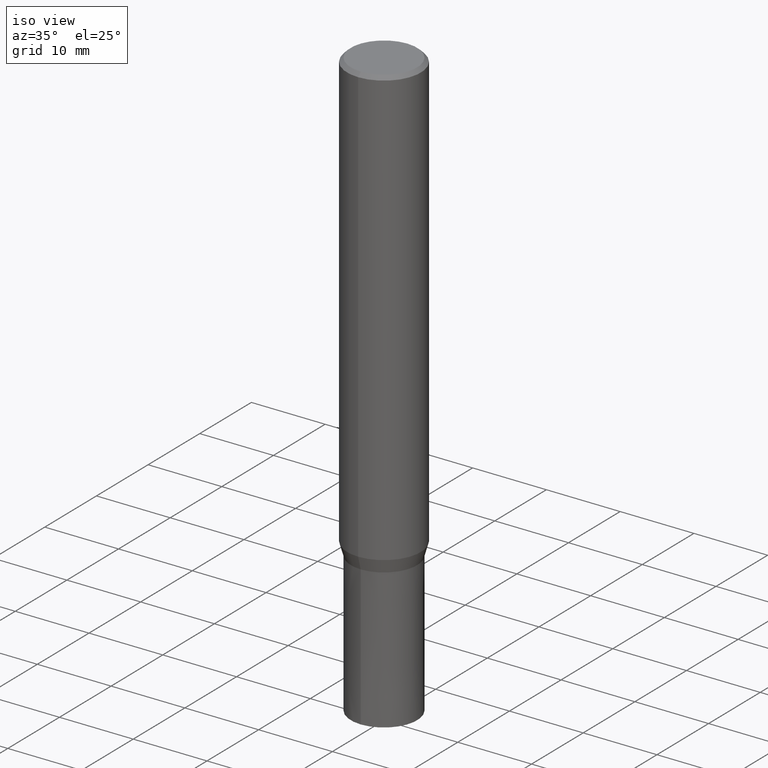
[diagram: clean part render]
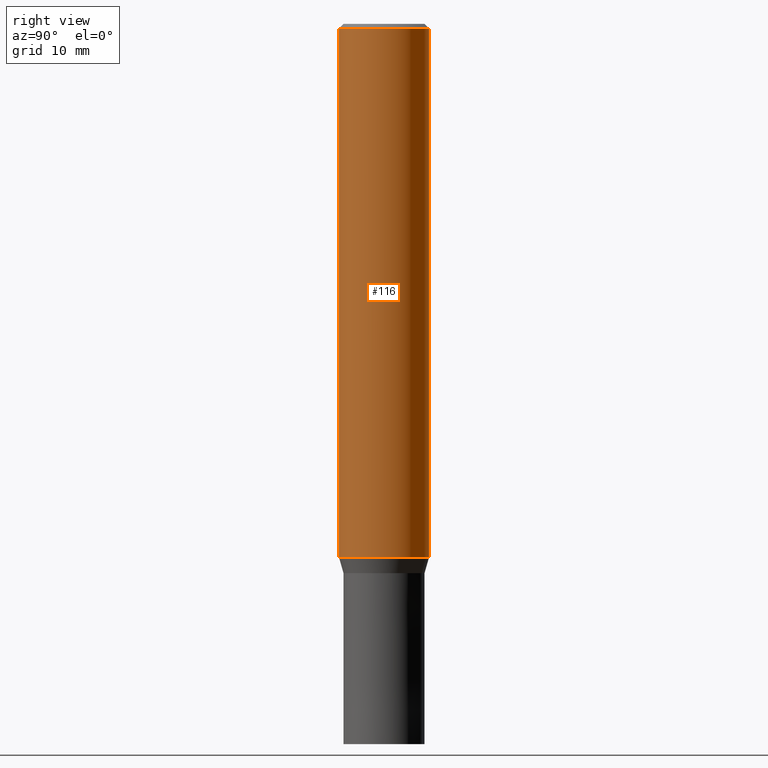
[diagram: tour spotlight — one face highlighted and labeled with its STEP entity id]
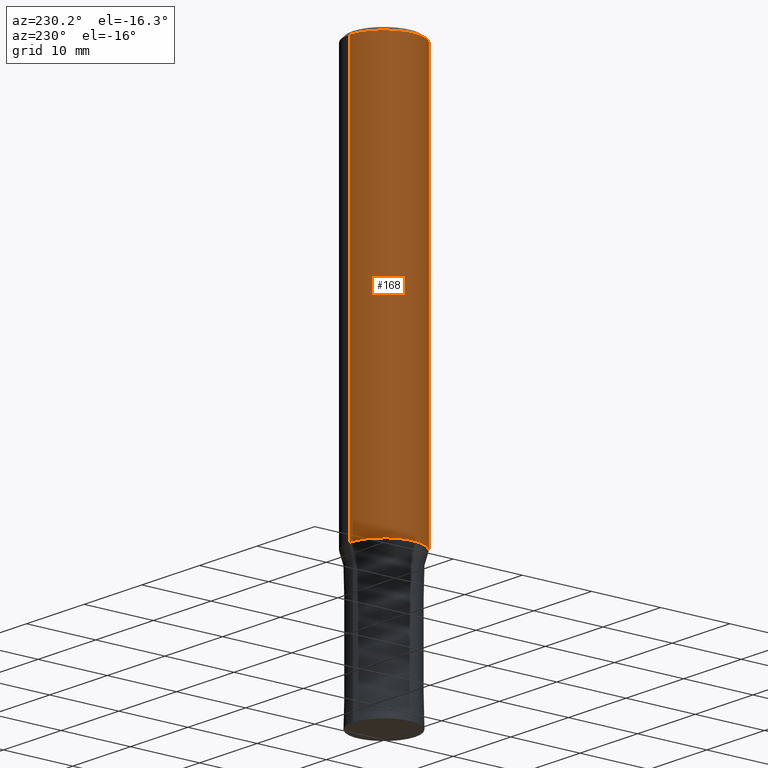
[diagram: tour spotlight — one face highlighted and labeled with its STEP entity id]
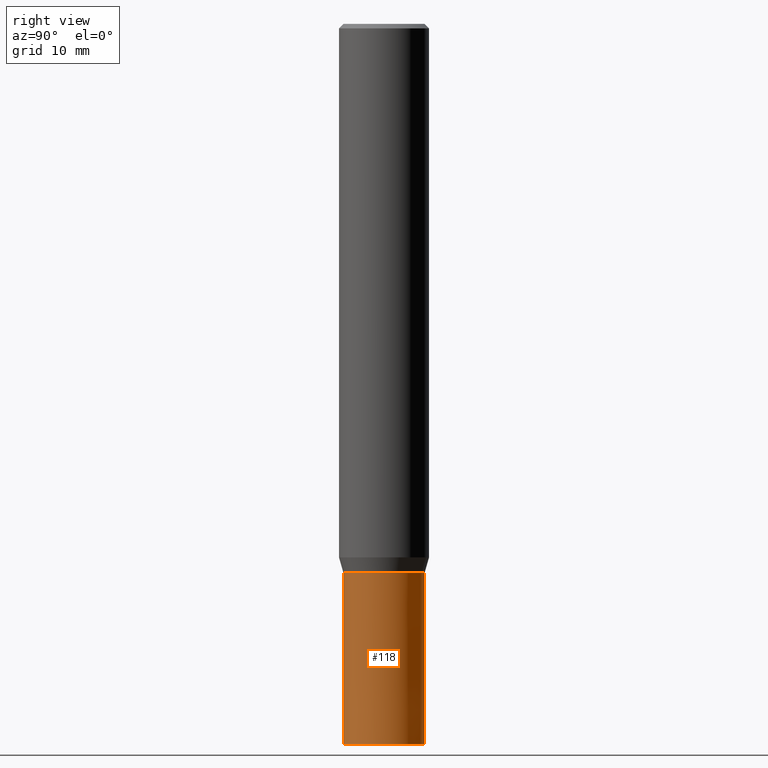
[diagram: tour spotlight — one face highlighted and labeled with its STEP entity id]
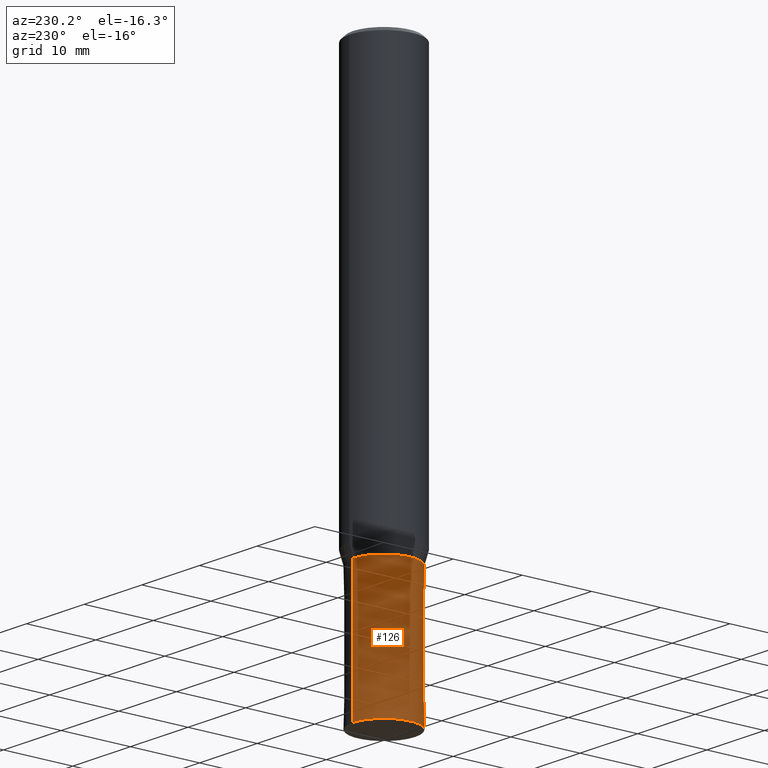
[diagram: tour spotlight — one face highlighted and labeled with its STEP entity id]
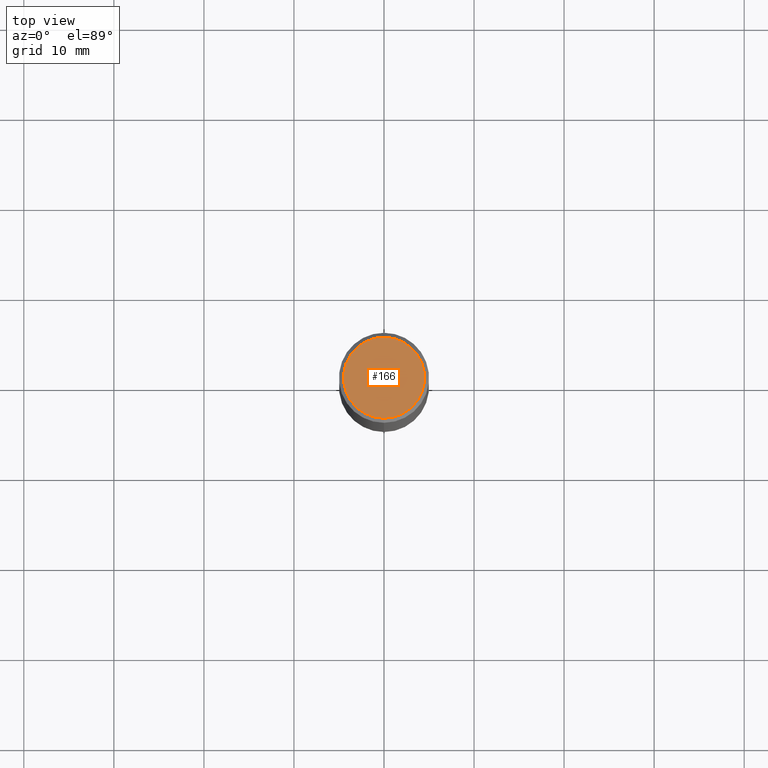
[diagram: tour spotlight — one face highlighted and labeled with its STEP entity id]
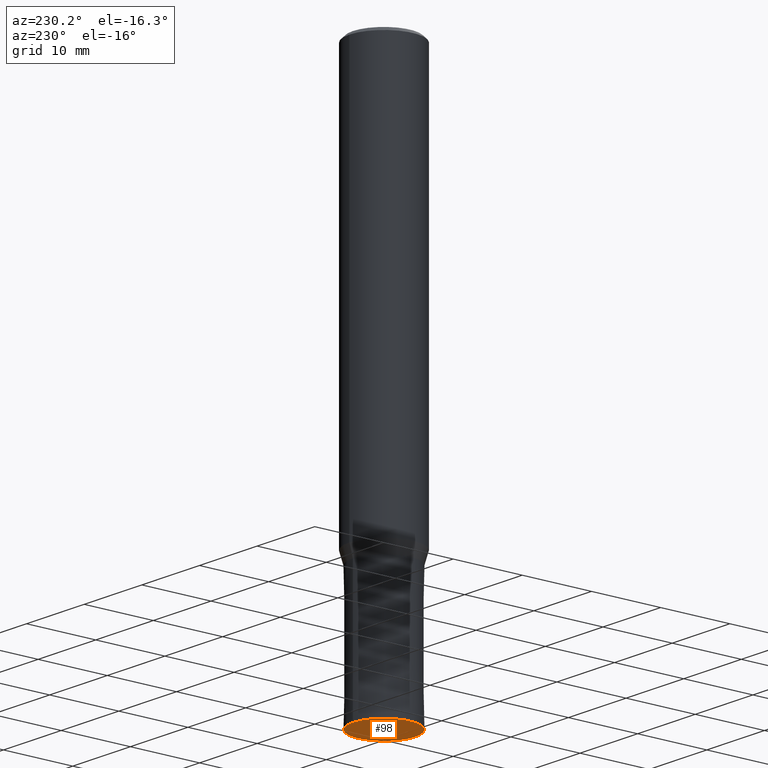
[diagram: tour spotlight — one face highlighted and labeled with its STEP entity id]
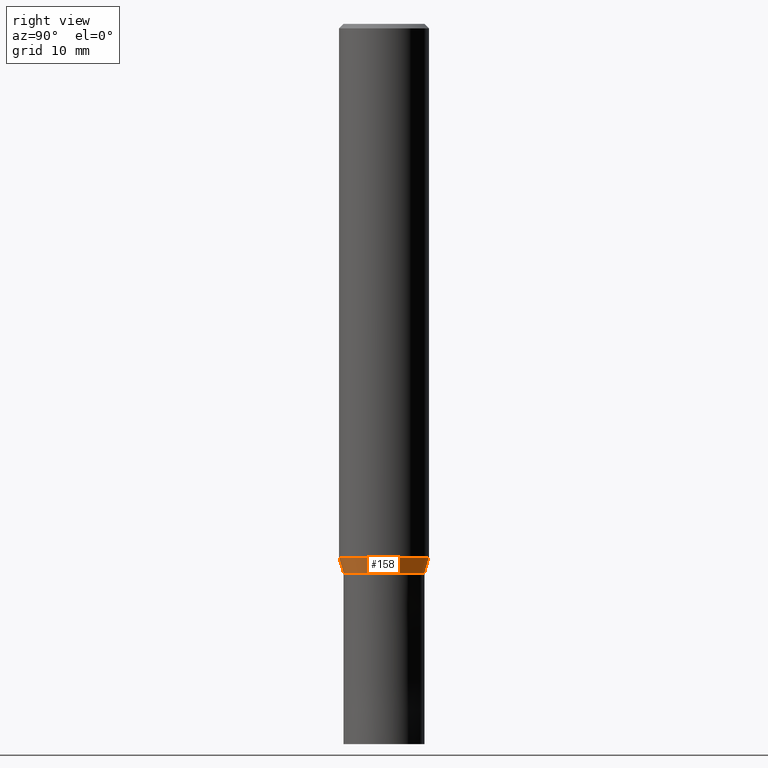
[diagram: tour spotlight — one face highlighted and labeled with its STEP entity id]
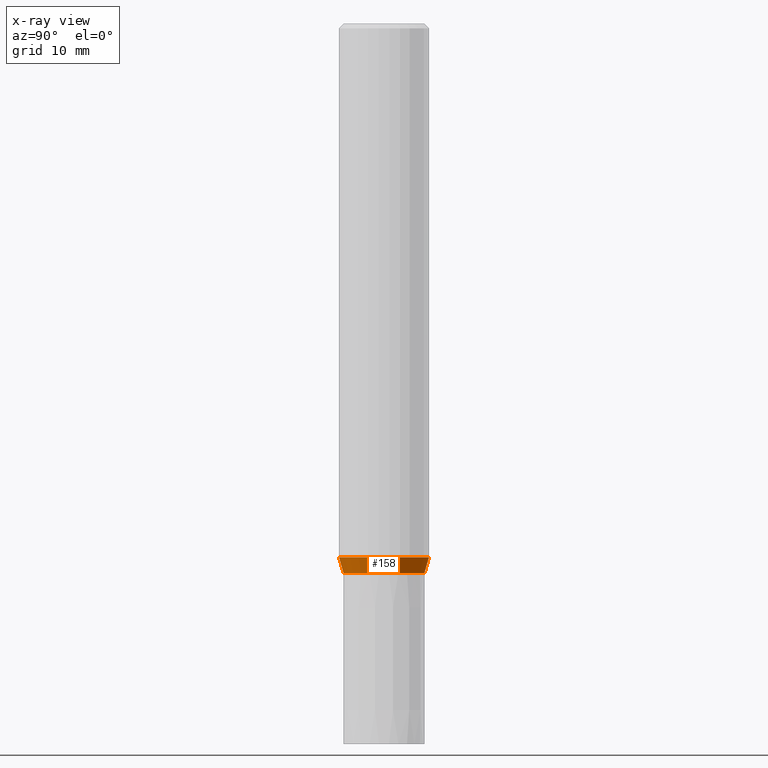
[diagram: x-ray of the same camera — body ghosted, this tour face saturated]
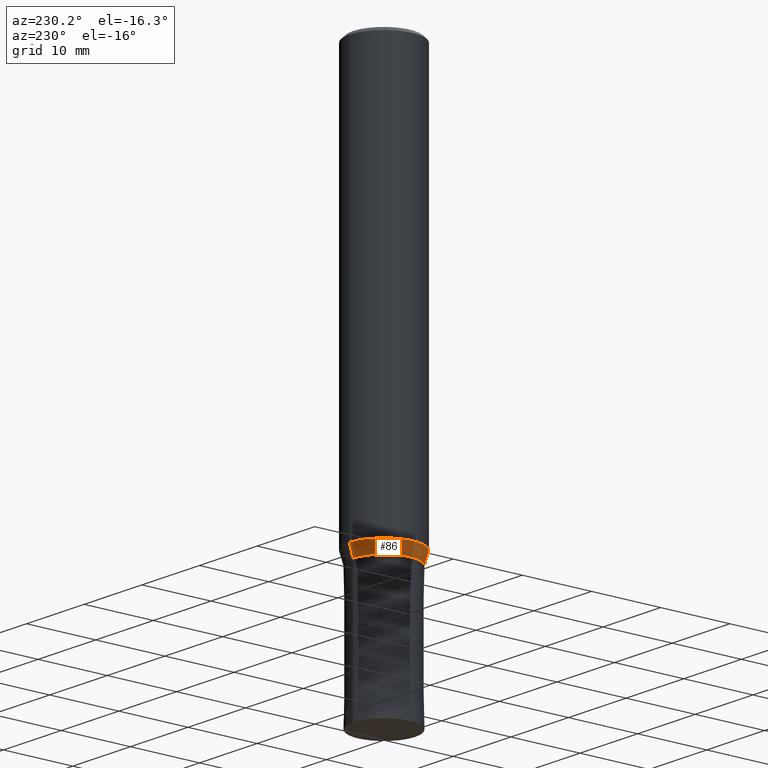
[diagram: tour spotlight — one face highlighted and labeled with its STEP entity id]
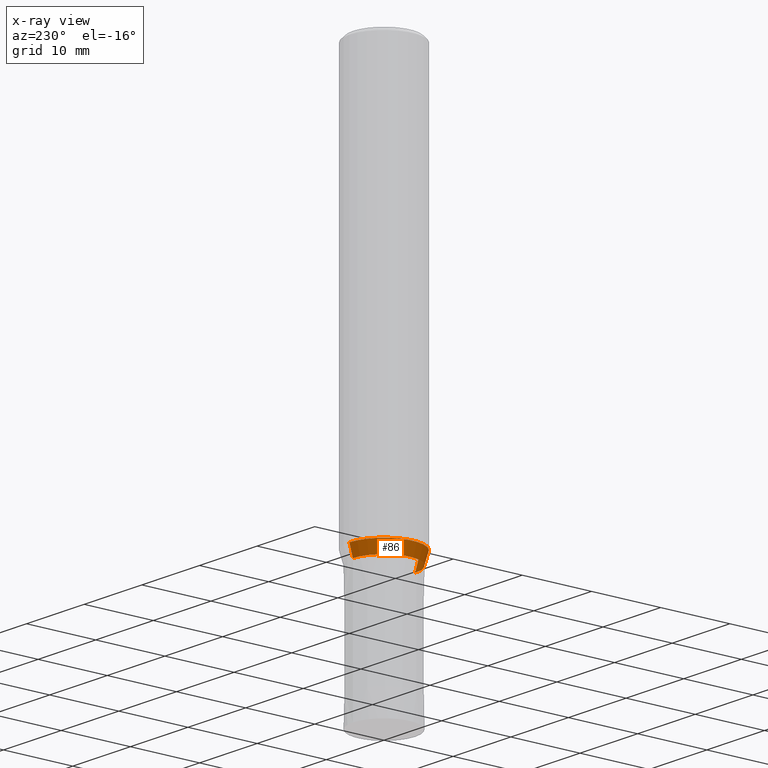
[diagram: x-ray of the same camera — body ghosted, this tour face saturated]
A machine part: a face-by-face anatomy tour. The part has 13 B-rep faces; the first image is the clean iso view, then the 8 largest visible faces are spotlighted one at a time (largest first), each with its STEP entity span.

Face 1 — right view, entity #116. In plain terms, the highlighted cylindrical surface (partial cylindrical patch) has radius 5 mm, axis along (-0, -0, 1).
Definition (entity closure, byte-faithful):
#92=EDGE_CURVE('',#106,#160,#214,.T.);
#106=VERTEX_POINT('',#229);
#108=VERTEX_POINT('',#231);
#116=ADVANCED_FACE('',(#241),#242,.T.);
#122=EDGE_CURVE('',#160,#138,#249,.T.);
#128=EDGE_CURVE('',#138,#108,#257,.T.);
#138=VERTEX_POINT('',#267);
#160=VERTEX_POINT('',#291);
#164=EDGE_CURVE('',#106,#108,#295,.T.);
#214=LINE('',#344,#345);
#229=CARTESIAN_POINT('',(0.0,5.0,-0.5));
#231=CARTESIAN_POINT('',(6.12303176911189E-016,-5.0,-0.5));
#241=FACE_OUTER_BOUND('',#377,.T.);
#242=CYLINDRICAL_SURFACE('',#378,5.0);
#249=CIRCLE('',#386,5.0);
#257=LINE('',#395,#396);
#267=CARTESIAN_POINT('',(6.12303176911189E-016,-5.0,-59.256));
#291=CARTESIAN_POINT('',(0.0,5.0,-59.256));
#295=CIRCLE('',#447,5.0);
#344=CARTESIAN_POINT('',(-6.12303176911189E-016,5.0,-29.878));
#345=VECTOR('',#485,1.0);
#377=EDGE_LOOP('',(#515,#516,#517,#518));
#378=AXIS2_PLACEMENT_3D('',#519,#520,#521);
#386=AXIS2_PLACEMENT_3D('',#530,#531,#532);
#395=CARTESIAN_POINT('',(6.12303176911189E-016,-5.0,-29.878));
#396=VECTOR('',#547,1.0);
#447=AXIS2_PLACEMENT_3D('',#585,#586,#587);
#485=DIRECTION('',(0.0,0.0,-1.0));
#515=ORIENTED_EDGE('',*,*,#92,.F.);
#516=ORIENTED_EDGE('',*,*,#164,.T.);
#517=ORIENTED_EDGE('',*,*,#128,.F.);
#518=ORIENTED_EDGE('',*,*,#122,.F.);
#519=CARTESIAN_POINT('',(0.0,0.0,-29.878));
#520=DIRECTION('',(-0.0,-0.0,1.0));
#521=DIRECTION('',(0.0,1.0,0.0));
#530=CARTESIAN_POINT('',(0.0,0.0,-59.256));
#531=DIRECTION('',(0.0,0.0,-1.0));
#532=DIRECTION('',(0.0,1.0,0.0));
#547=DIRECTION('',(-0.0,-0.0,1.0));
#585=CARTESIAN_POINT('',(0.0,0.0,-0.5));
#586=DIRECTION('',(0.0,0.0,-1.0));
#587=DIRECTION('',(0.0,1.0,0.0));

Face 2 — auxiliary view, entity #168. In plain terms, the highlighted cylindrical surface (partial cylindrical patch) has radius 5 mm, axis along (-0, -0, 1).
Definition (entity closure, byte-faithful):
#92=EDGE_CURVE('',#106,#160,#214,.T.);
#106=VERTEX_POINT('',#229);
#108=VERTEX_POINT('',#231);
#128=EDGE_CURVE('',#138,#108,#257,.T.);
#138=VERTEX_POINT('',#267);
#146=EDGE_CURVE('',#108,#106,#276,.T.);
#156=EDGE_CURVE('',#138,#160,#286,.T.);
#160=VERTEX_POINT('',#291);
#168=ADVANCED_FACE('',(#300),#301,.T.);
#214=LINE('',#344,#345);
#229=CARTESIAN_POINT('',(0.0,5.0,-0.5));
#231=CARTESIAN_POINT('',(6.12303176911189E-016,-5.0,-0.5));
#257=LINE('',#395,#396);
#267=CARTESIAN_POINT('',(6.12303176911189E-016,-5.0,-59.256));
#276=CIRCLE('',#420,5.0);
#286=CIRCLE('',#435,5.0);
#291=CARTESIAN_POINT('',(0.0,5.0,-59.256));
#300=FACE_OUTER_BOUND('',#452,.T.);
#301=CYLINDRICAL_SURFACE('',#453,5.0);
#344=CARTESIAN_POINT('',(-6.12303176911189E-016,5.0,-29.878));
#345=VECTOR('',#485,1.0);
#395=CARTESIAN_POINT('',(6.12303176911189E-016,-5.0,-29.878));
#396=VECTOR('',#547,1.0);
#420=AXIS2_PLACEMENT_3D('',#563,#564,#565);
#435=AXIS2_PLACEMENT_3D('',#573,#574,#575);
#452=EDGE_LOOP('',(#595,#596,#597,#598));
#453=AXIS2_PLACEMENT_3D('',#599,#600,#601);
#485=DIRECTION('',(0.0,0.0,-1.0));
#547=DIRECTION('',(-0.0,-0.0,1.0));
#563=CARTESIAN_POINT('',(0.0,0.0,-0.5));
#564=DIRECTION('',(0.0,0.0,-1.0));
#565=DIRECTION('',(0.0,1.0,0.0));
#573=CARTESIAN_POINT('',(0.0,0.0,-59.256));
#574=DIRECTION('',(0.0,0.0,-1.0));
#575=DIRECTION('',(0.0,1.0,0.0));
#595=ORIENTED_EDGE('',*,*,#92,.T.);
#596=ORIENTED_EDGE('',*,*,#156,.F.);
#597=ORIENTED_EDGE('',*,*,#128,.T.);
#598=ORIENTED_EDGE('',*,*,#146,.T.);
#599=CARTESIAN_POINT('',(0.0,0.0,-29.878));
#600=DIRECTION('',(-0.0,-0.0,1.0));
#601=DIRECTION('',(0.0,1.0,0.0));

Face 3 — right view, entity #118. In plain terms, the highlighted conical surface has half-angle 0 deg.
Definition (entity closure, byte-faithful):
#84=VERTEX_POINT('',#205);
#102=VERTEX_POINT('',#225);
#104=EDGE_CURVE('',#144,#84,#227,.T.);
#118=ADVANCED_FACE('',(#244),#245,.T.);
#130=VERTEX_POINT('',#259);
#132=EDGE_CURVE('',#130,#144,#261,.T.);
#144=VERTEX_POINT('',#274);
#162=EDGE_CURVE('',#84,#102,#293,.T.);
#184=EDGE_CURVE('',#130,#102,#319,.T.);
#205=CARTESIAN_POINT('',(5.5107285922007E-016,-4.5,-80.0));
#225=CARTESIAN_POINT('',(5.51060613156532E-016,-4.4999,-61.0));
#227=CIRCLE('',#363,4.5);
#244=FACE_OUTER_BOUND('',#380,.T.);
#245=CONICAL_SURFACE('',#381,4.49995,5.26315789467598E-006);
#259=CARTESIAN_POINT('',(0.0,4.4999,-61.0));
#261=LINE('',#401,#402);
#274=CARTESIAN_POINT('',(0.0,4.5,-80.0));
#293=LINE('',#443,#444);
#319=CIRCLE('',#474,4.4999);
#363=AXIS2_PLACEMENT_3D('',#499,#500,#501);
#380=EDGE_LOOP('',(#523,#524,#525,#526));
#381=AXIS2_PLACEMENT_3D('',#527,#528,#529);
#401=CARTESIAN_POINT('',(-5.51066736188301E-016,4.49995,-70.5));
#402=VECTOR('',#548,1.0);
#443=CARTESIAN_POINT('',(5.51066736188301E-016,-4.49995,-70.5));
#444=VECTOR('',#584,1.0);
#474=AXIS2_PLACEMENT_3D('',#621,#622,#623);
#499=CARTESIAN_POINT('',(0.0,0.0,-80.0));
#500=DIRECTION('',(0.0,0.0,-1.0));
#501=DIRECTION('',(0.0,1.0,0.0));
#523=ORIENTED_EDGE('',*,*,#132,.F.);
#524=ORIENTED_EDGE('',*,*,#184,.T.);
#525=ORIENTED_EDGE('',*,*,#162,.F.);
#526=ORIENTED_EDGE('',*,*,#104,.F.);
#527=CARTESIAN_POINT('',(0.0,0.0,-70.5));
#528=DIRECTION('',(0.0,-0.0,-1.0));
#529=DIRECTION('',(0.0,1.0,0.0));
#548=DIRECTION('',(-6.44529659896085E-022,5.26315789465168E-006,-0.99999999998615));
#584=DIRECTION('',(-6.44529659896085E-022,5.26315789465168E-006,0.99999999998615));
#621=CARTESIAN_POINT('',(0.0,0.0,-61.0));
#622=DIRECTION('',(0.0,0.0,-1.0));
#623=DIRECTION('',(0.0,1.0,0.0));

Face 4 — auxiliary view, entity #126. In plain terms, the highlighted conical surface has half-angle 0 deg.
Definition (entity closure, byte-faithful):
#84=VERTEX_POINT('',#205);
#102=VERTEX_POINT('',#225);
#126=ADVANCED_FACE('',(#254),#255,.T.);
#130=VERTEX_POINT('',#259);
#132=EDGE_CURVE('',#130,#144,#261,.T.);
#134=EDGE_CURVE('',#102,#130,#263,.T.);
#136=EDGE_CURVE('',#84,#144,#265,.T.);
#144=VERTEX_POINT('',#274);
#162=EDGE_CURVE('',#84,#102,#293,.T.);
#205=CARTESIAN_POINT('',(5.5107285922007E-016,-4.5,-80.0));
#225=CARTESIAN_POINT('',(5.51060613156532E-016,-4.4999,-61.0));
#254=FACE_OUTER_BOUND('',#391,.T.);
#255=CONICAL_SURFACE('',#392,4.49995,5.26315789467598E-006);
#259=CARTESIAN_POINT('',(0.0,4.4999,-61.0));
#261=LINE('',#401,#402);
#263=CIRCLE('',#405,4.4999);
#265=CIRCLE('',#408,4.5);
#274=CARTESIAN_POINT('',(0.0,4.5,-80.0));
#293=LINE('',#443,#444);
#391=EDGE_LOOP('',(#540,#541,#542,#543));
#392=AXIS2_PLACEMENT_3D('',#544,#545,#546);
#401=CARTESIAN_POINT('',(-5.51066736188301E-016,4.49995,-70.5));
#402=VECTOR('',#548,1.0);
#405=AXIS2_PLACEMENT_3D('',#549,#550,#551);
#408=AXIS2_PLACEMENT_3D('',#552,#553,#554);
#443=CARTESIAN_POINT('',(5.51066736188301E-016,-4.49995,-70.5));
#444=VECTOR('',#584,1.0);
#540=ORIENTED_EDGE('',*,*,#132,.T.);
#541=ORIENTED_EDGE('',*,*,#136,.F.);
#542=ORIENTED_EDGE('',*,*,#162,.T.);
#543=ORIENTED_EDGE('',*,*,#134,.T.);
#544=CARTESIAN_POINT('',(0.0,0.0,-70.5));
#545=DIRECTION('',(0.0,-0.0,-1.0));
#546=DIRECTION('',(0.0,1.0,0.0));
#548=DIRECTION('',(-6.44529659896085E-022,5.26315789465168E-006,-0.99999999998615));
#549=CARTESIAN_POINT('',(0.0,0.0,-61.0));
#550=DIRECTION('',(0.0,0.0,-1.0));
#551=DIRECTION('',(0.0,1.0,0.0));
#552=CARTESIAN_POINT('',(0.0,0.0,-80.0));
#553=DIRECTION('',(0.0,0.0,-1.0));
#554=DIRECTION('',(0.0,1.0,0.0));
#584=DIRECTION('',(-6.44529659896085E-022,5.26315789465168E-006,0.99999999998615));

Face 5 — top view, entity #166. In plain terms, the highlighted planar face has unit normal (-0, 0, 1).
Definition (entity closure, byte-faithful):
#100=EDGE_CURVE('',#182,#180,#223,.T.);
#148=EDGE_CURVE('',#180,#182,#278,.T.);
#166=ADVANCED_FACE('',(#297),#298,.T.);
#180=VERTEX_POINT('',#315);
#182=VERTEX_POINT('',#317);
#223=CIRCLE('',#358,4.5);
#278=CIRCLE('',#423,4.5);
#297=FACE_OUTER_BOUND('',#449,.T.);
#298=PLANE('',#450);
#315=CARTESIAN_POINT('',(5.5107285922007E-016,-4.5,0.0));
#317=CARTESIAN_POINT('',(0.0,4.5,0.0));
#358=AXIS2_PLACEMENT_3D('',#496,#497,#498);
#423=AXIS2_PLACEMENT_3D('',#566,#567,#568);
#449=EDGE_LOOP('',(#589,#590));
#450=AXIS2_PLACEMENT_3D('',#591,#592,#593);
#496=CARTESIAN_POINT('',(0.0,0.0,0.0));
#497=DIRECTION('',(0.0,0.0,-1.0));
#498=DIRECTION('',(0.0,1.0,0.0));
#566=CARTESIAN_POINT('',(0.0,0.0,0.0));
#567=DIRECTION('',(0.0,0.0,-1.0));
#568=DIRECTION('',(0.0,1.0,0.0));
#589=ORIENTED_EDGE('',*,*,#100,.F.);
#590=ORIENTED_EDGE('',*,*,#148,.F.);
#591=CARTESIAN_POINT('',(0.0,2.25,0.0));
#592=DIRECTION('',(-0.0,0.0,1.0));
#593=DIRECTION('',(0.0,-1.0,0.0));

Face 6 — auxiliary view, entity #98. In plain terms, the highlighted planar face has unit normal (0, 0, -1).
Definition (entity closure, byte-faithful):
#84=VERTEX_POINT('',#205);
#98=ADVANCED_FACE('',(#220),#221,.T.);
#104=EDGE_CURVE('',#144,#84,#227,.T.);
#136=EDGE_CURVE('',#84,#144,#265,.T.);
#144=VERTEX_POINT('',#274);
#205=CARTESIAN_POINT('',(5.5107285922007E-016,-4.5,-80.0));
#220=FACE_OUTER_BOUND('',#354,.T.);
#221=PLANE('',#355);
#227=CIRCLE('',#363,4.5);
#265=CIRCLE('',#408,4.5);
#274=CARTESIAN_POINT('',(0.0,4.5,-80.0));
#354=EDGE_LOOP('',(#491,#492));
#355=AXIS2_PLACEMENT_3D('',#493,#494,#495);
#363=AXIS2_PLACEMENT_3D('',#499,#500,#501);
#408=AXIS2_PLACEMENT_3D('',#552,#553,#554);
#491=ORIENTED_EDGE('',*,*,#104,.T.);
#492=ORIENTED_EDGE('',*,*,#136,.T.);
#493=CARTESIAN_POINT('',(0.0,2.2475,-80.0));
#494=DIRECTION('',(0.0,0.0,-1.0));
#495=DIRECTION('',(0.0,1.0,0.0));
#499=CARTESIAN_POINT('',(0.0,0.0,-80.0));
#500=DIRECTION('',(0.0,0.0,-1.0));
#501=DIRECTION('',(0.0,1.0,0.0));
#552=CARTESIAN_POINT('',(0.0,0.0,-80.0));
#553=DIRECTION('',(0.0,0.0,-1.0));
#554=DIRECTION('',(0.0,1.0,0.0));

Face 7 — right view, entity #158. An x-ray twin of the same camera follows (body ghosted, this face saturated) — the face is partly hidden behind the body. In plain terms, the highlighted conical surface has half-angle 15.997 deg.
Definition (entity closure, byte-faithful):
#88=EDGE_CURVE('',#142,#154,#210,.T.);
#90=VERTEX_POINT('',#212);
#112=EDGE_CURVE('',#90,#154,#235,.T.);
#120=VERTEX_POINT('',#247);
#142=VERTEX_POINT('',#272);
#150=EDGE_CURVE('',#120,#142,#280,.T.);
#154=VERTEX_POINT('',#284);
#158=ADVANCED_FACE('',(#288),#289,.T.);
#174=EDGE_CURVE('',#90,#120,#308,.T.);
#210=LINE('',#338,#339);
#212=CARTESIAN_POINT('',(0.0,4.99995,-59.256));
#235=CIRCLE('',#371,4.99995);
#247=CARTESIAN_POINT('',(0.0,4.49995,-61.0));
#272=CARTESIAN_POINT('',(5.51066736188301E-016,-4.49995,-61.0));
#280=CIRCLE('',#426,4.49995);
#284=CARTESIAN_POINT('',(6.12297053879419E-016,-4.99995,-59.256));
#288=FACE_OUTER_BOUND('',#437,.T.);
#289=CONICAL_SURFACE('',#438,4.74995,0.279208199033747);
#308=LINE('',#460,#461);
#338=CARTESIAN_POINT('',(5.8168189503386E-016,-4.74995,-60.128));
#339=VECTOR('',#484,1.0);
#371=AXIS2_PLACEMENT_3D('',#503,#504,#505);
#426=AXIS2_PLACEMENT_3D('',#569,#570,#571);
#437=EDGE_LOOP('',(#577,#578,#579,#580));
#438=AXIS2_PLACEMENT_3D('',#581,#582,#583);
#460=CARTESIAN_POINT('',(-5.8168189503386E-016,4.74995,-60.128));
#461=VECTOR('',#609,1.0);
#484=DIRECTION('',(3.37494895041124E-017,-0.275594597388538,0.961273955691222));
#503=CARTESIAN_POINT('',(0.0,0.0,-59.256));
#504=DIRECTION('',(0.0,0.0,-1.0));
#505=DIRECTION('',(0.0,1.0,0.0));
#569=CARTESIAN_POINT('',(0.0,0.0,-61.0));
#570=DIRECTION('',(0.0,0.0,-1.0));
#571=DIRECTION('',(0.0,1.0,0.0));
#577=ORIENTED_EDGE('',*,*,#174,.F.);
#578=ORIENTED_EDGE('',*,*,#112,.T.);
#579=ORIENTED_EDGE('',*,*,#88,.F.);
#580=ORIENTED_EDGE('',*,*,#150,.F.);
#581=CARTESIAN_POINT('',(0.0,0.0,-60.128));
#582=DIRECTION('',(-0.0,-0.0,1.0));
#583=DIRECTION('',(0.0,1.0,0.0));
#609=DIRECTION('',(3.37494895041124E-017,-0.275594597388538,-0.961273955691222));

Face 8 — auxiliary view, entity #86. An x-ray twin of the same camera follows (body ghosted, this face saturated) — the face is partly hidden behind the body. In plain terms, the highlighted conical surface has half-angle 15.997 deg.
Definition (entity closure, byte-faithful):
#86=ADVANCED_FACE('',(#207),#208,.T.);
#88=EDGE_CURVE('',#142,#154,#210,.T.);
#90=VERTEX_POINT('',#212);
#94=EDGE_CURVE('',#154,#90,#216,.T.);
#120=VERTEX_POINT('',#247);
#142=VERTEX_POINT('',#272);
#154=VERTEX_POINT('',#284);
#174=EDGE_CURVE('',#90,#120,#308,.T.);
#178=EDGE_CURVE('',#142,#120,#313,.T.);
#207=FACE_OUTER_BOUND('',#334,.T.);
#208=CONICAL_SURFACE('',#335,4.74995,0.279208199033747);
#210=LINE('',#338,#339);
#212=CARTESIAN_POINT('',(0.0,4.99995,-59.256));
#216=CIRCLE('',#348,4.99995);
#247=CARTESIAN_POINT('',(0.0,4.49995,-61.0));
#272=CARTESIAN_POINT('',(5.51066736188301E-016,-4.49995,-61.0));
#284=CARTESIAN_POINT('',(6.12297053879419E-016,-4.99995,-59.256));
#308=LINE('',#460,#461);
#313=CIRCLE('',#467,4.49995);
#334=EDGE_LOOP('',(#477,#478,#479,#480));
#335=AXIS2_PLACEMENT_3D('',#481,#482,#483);
#338=CARTESIAN_POINT('',(5.8168189503386E-016,-4.74995,-60.128));
#339=VECTOR('',#484,1.0);
#348=AXIS2_PLACEMENT_3D('',#486,#487,#488);
#460=CARTESIAN_POINT('',(-5.8168189503386E-016,4.74995,-60.128));
#461=VECTOR('',#609,1.0);
#467=AXIS2_PLACEMENT_3D('',#618,#619,#620);
#477=ORIENTED_EDGE('',*,*,#174,.T.);
#478=ORIENTED_EDGE('',*,*,#178,.F.);
#479=ORIENTED_EDGE('',*,*,#88,.T.);
#480=ORIENTED_EDGE('',*,*,#94,.T.);
#481=CARTESIAN_POINT('',(0.0,0.0,-60.128));
#482=DIRECTION('',(-0.0,-0.0,1.0));
#483=DIRECTION('',(0.0,1.0,0.0));
#484=DIRECTION('',(3.37494895041124E-017,-0.275594597388538,0.961273955691222));
#486=CARTESIAN_POINT('',(0.0,0.0,-59.256));
#487=DIRECTION('',(0.0,0.0,-1.0));
#488=DIRECTION('',(0.0,1.0,0.0));
#609=DIRECTION('',(3.37494895041124E-017,-0.275594597388538,-0.961273955691222));
#618=CARTESIAN_POINT('',(0.0,0.0,-61.0));
#619=DIRECTION('',(0.0,0.0,-1.0));
#620=DIRECTION('',(0.0,1.0,0.0));